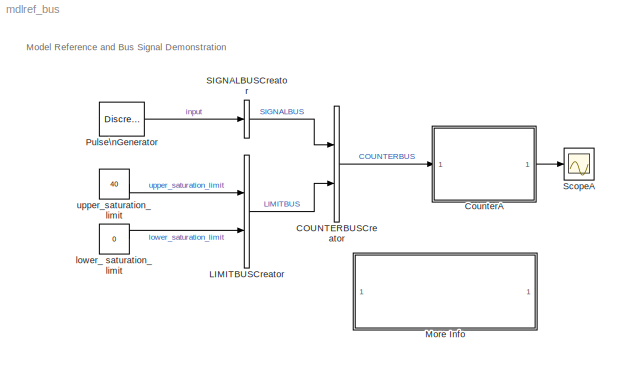
MODEL mdlref_bus
KIND model
CONFIG PreLoadFcn = load mdlref_counter_bus.mat
BLOCK [BusCreator] COUNTERBUSCreator
  BusObject = COUNTERBUS
  DialogController = Simulink.DDGSource_Bus
  DisplayOption = bar
  Inputs = 2
  NonVirtualBus = on
  Ports = [2, 1]
  UseBusObject = on
BLOCK [ModelReference] CounterA
  CopyOfModelName = mdlref_counter_bus
  DefaultDataLogging = off
  ModelName = mdlref_counter_bus
  ModelReferenceVersion = 1.111
  Ports = [1, 1]
BLOCK [BusCreator] LIMITBUSCreator
  BusObject = LIMITBUS
  DialogController = Simulink.DDGSource_Bus
  DisplayOption = bar
  Inputs = 2
  NonVirtualBus = on
  Ports = [2, 1]
  UseBusObject = on
BLOCK [SubSystem] More Info
  MaskDisplay = disp('Double click here \\nfor a step-by-step\\ntutorial on this model')
  MaskIconFrame = on
  MaskIconOpaque = on
  MaskIconRotate = none
  MaskIconUnits = autoscale
  MinAlgLoopOccurrences = off
  OpenFcn = mdlref_busscript
  Ports = []
  PropExecContextAcrossSSBoundary = on
  RTWSystemCode = Auto
  TreatAsAtomicUnit = off
BLOCK [DiscretePulseGenerator] Pulse\nGenerator
  Amplitude = int32(1)
  Ports = [0, 1]
  SampleTime = 0.1
BLOCK [BusCreator] SIGNALBUSCreator
  BusObject = SIGNALBUS
  DialogController = Simulink.DDGSource_Bus
  DisplayOption = bar
  Inputs = 1
  NonVirtualBus = on
  Ports = [1, 1]
  UseBusObject = on
BLOCK [Scope] ScopeA
  DataFormat = Array
  LimitDataPoints = off
  NumInputPorts = 1
  Ports = [1]
  SaveName = ScopeDataA
  SaveToWorkspace = on
  TimeRange = 30
  YMax = 50
  ZoomMode = yonly
BLOCK [Constant] lower_ saturation_ limit
  OutDataTypeMode = int32
  Value = 0
BLOCK [Constant] upper_saturation_limit
  OutDataTypeMode = int32
  Value = 40
ANNOTATION (root): Model Reference and Bus Signal Demonstration
ANNOTATION More Info: Bus Block Demonstration
ANNOTATION More Info: This demonstration shows how signals may be grouped and ungrouped while\nretaining their names. In this demonstration, 5 signals are created and labelled\nappropriately. These signals are then mux'd together to create a bus of signals.\nThis bus of signals is then fed into the Bus Selector block. Inside of the Bus \nSelector block, the Pulse and Chirp signals are chosen to be output from the \nori...<+125ch>
LINE COUNTERBUSCreator:1 -> CounterA:1
LINE CounterA:1 -> ScopeA:1
LINE LIMITBUSCreator:1 -> COUNTERBUSCreator:2
LINE Pulse\nGenerator:1 -> SIGNALBUSCreator:1
LINE SIGNALBUSCreator:1 -> COUNTERBUSCreator:1
LINE lower_ saturation_ limit:1 -> LIMITBUSCreator:2
LINE upper_saturation_limit:1 -> LIMITBUSCreator:1
